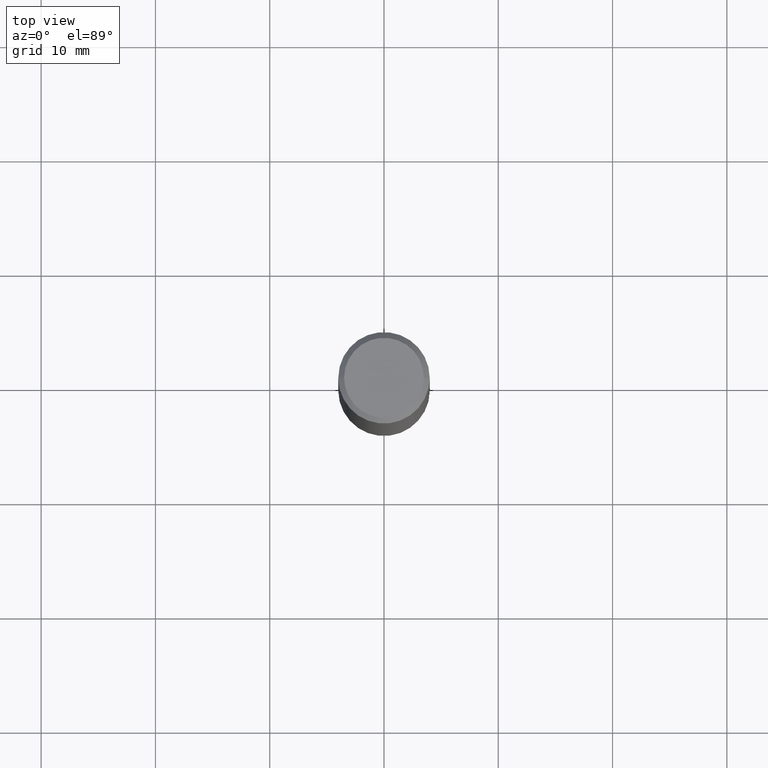
[diagram: clean part render]
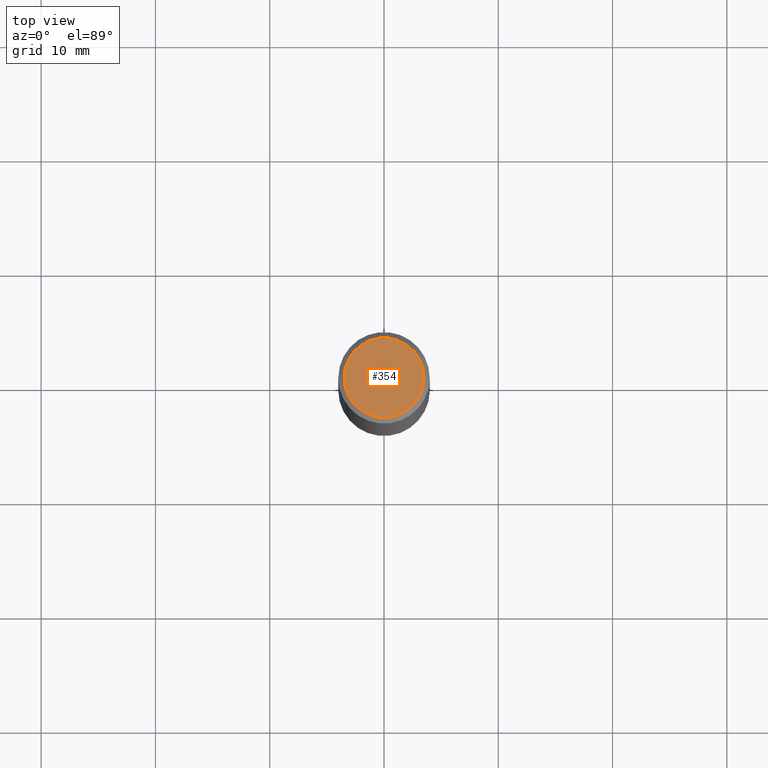
[diagram: same view with one face highlighted and labeled with its STEP entity id]
A machine part, top view. The second image highlights one B-rep face of the part: STEP entity #354.
In plain terms, the highlighted planar face has unit normal (0, -0, -1).
Its self-contained STEP definition (entity closure, byte-faithful):
#39 = AXIS2_PLACEMENT_3D ( 'NONE', #141, #50, #168 ) ;
#50 = DIRECTION ( 'NONE',  ( -2.445468806185136597E-29, 3.491481338843145583E-15, 1.000000000000000000 ) ) ;
#98 = CIRCLE ( 'NONE', #108, 0.1374999999999997891 ) ;
#108 = AXIS2_PLACEMENT_3D ( 'NONE', #174, #251, #176 ) ;
#109 = DIRECTION ( 'NONE',  ( -1.000000000000000000, 6.982962677686265922E-15, -4.876176775795935793E-29 ) ) ;
#116 = CARTESIAN_POINT ( 'NONE',  ( -0.1374999999999997891, 9.950721815702913496E-16, 8.537024980193986277E-18 ) ) ;
#135 = PLANE ( 'NONE',  #156 ) ;
#141 = CARTESIAN_POINT ( 'NONE',  ( -2.087702828670439639E-46, 2.980686340760894400E-32, 8.537024980200822558E-18 ) ) ;
#145 = VERTEX_POINT ( 'NONE', #193 ) ;
#148 = CIRCLE ( 'NONE', #39, 0.1374999999999997891 ) ;
#156 = AXIS2_PLACEMENT_3D ( 'NONE', #247, #361, #109 ) ;
#168 = DIRECTION ( 'NONE',  ( 1.000000000000000000, -6.982962677686267499E-15, 4.876173381029107889E-29 ) ) ;
#174 = CARTESIAN_POINT ( 'NONE',  ( -2.087702828670439639E-46, 2.980686340760894400E-32, 8.537024980200822558E-18 ) ) ;
#176 = DIRECTION ( 'NONE',  ( 1.000000000000000000, -6.982962677686267499E-15, 4.876173381029107889E-29 ) ) ;
#193 = CARTESIAN_POINT ( 'NONE',  ( 0.1374999999999997891, -1.046838268059730914E-15, 8.537024980207840646E-18 ) ) ;
#203 = VERTEX_POINT ( 'NONE', #116 ) ;
#208 = ORIENTED_EDGE ( 'NONE', *, *, #213, .T. ) ;
#213 = EDGE_CURVE ( 'NONE', #203, #145, #148, .T. ) ;
#216 = EDGE_CURVE ( 'NONE', #145, #203, #98, .T. ) ;
#225 = FACE_OUTER_BOUND ( 'NONE', #256, .T. ) ;
#247 = CARTESIAN_POINT ( 'NONE',  ( 9.601573681818600950E-16, 0.1374999999999997891, -4.758101716008313957E-16 ) ) ;
#251 = DIRECTION ( 'NONE',  ( -2.445468806185136597E-29, 3.491481338843145583E-15, 1.000000000000000000 ) ) ;
#256 = EDGE_LOOP ( 'NONE', ( #208, #366 ) ) ;
#354 = ADVANCED_FACE ( 'NONE', ( #225 ), #135, .F. ) ;
#361 = DIRECTION ( 'NONE',  ( 2.438088387897960049E-29, -3.491481338843145188E-15, -1.000000000000000000 ) ) ;
#366 = ORIENTED_EDGE ( 'NONE', *, *, #216, .T. ) ;